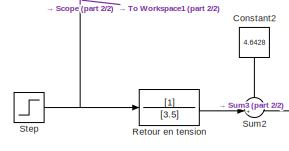
[diagram: root canvas - part 1/2, top left region]
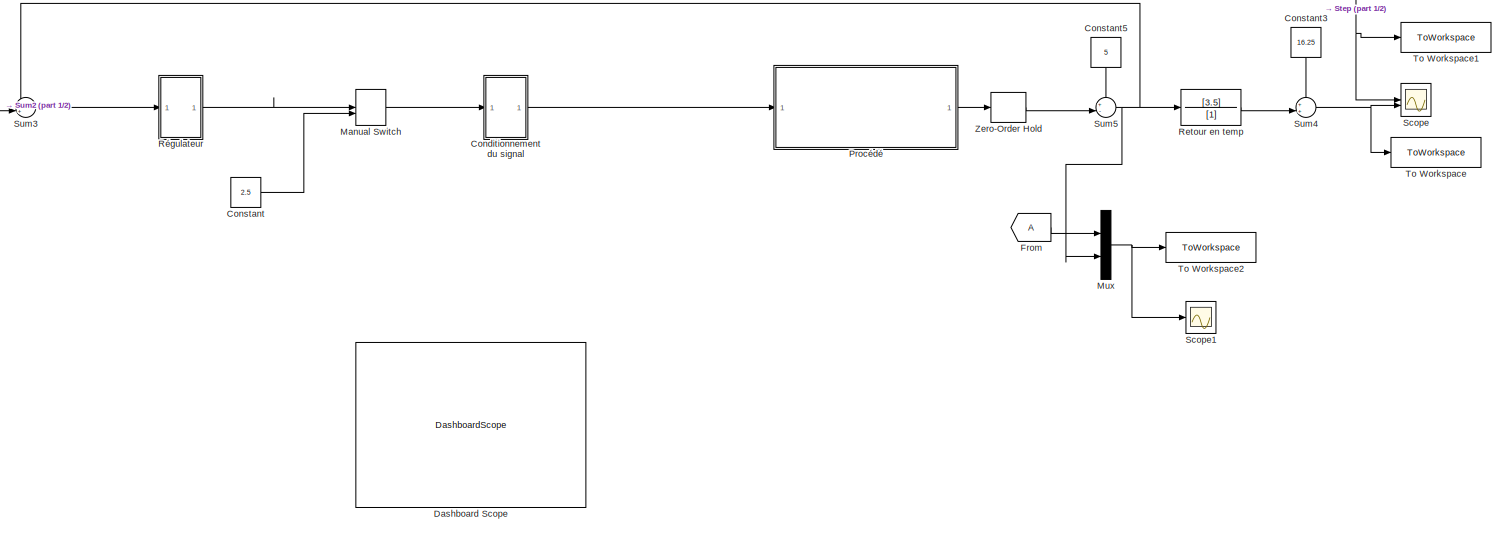
[diagram: root canvas - part 2/2, most of the canvas]
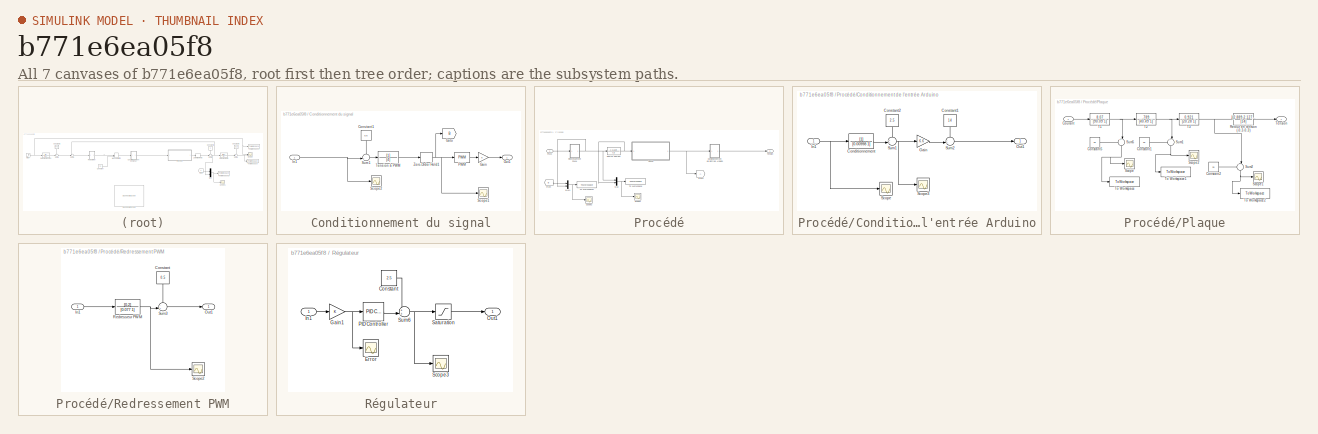
[diagram: thumbnail index - all 7 canvases of the model, root first then tree order]
MODEL slx_b771e6ea05f8
KIND model
CONFIG AbsTol = auto
CONFIG EnableMultiTasking = off
CONFIG FixedStep = auto
CONFIG MaxStep = auto
CONFIG MinStep = auto
CONFIG RelTol = 1e-3
CONFIG SampleTimeConstraint = Unconstrained
CONFIG SolverName = VariableStepAuto
CONFIG StartTime = 0.0
CONFIG StopTime = 1500
BLOCK [SubSystem] Conditionnement du signal
BLOCK [Constant] Conditionnement du signal/Constant1
  NameLocation = left
  Value = 0.5
BLOCK [Gain] Conditionnement du signal/Gain
  Gain = 5
BLOCK [Goto] Conditionnement du signal/Goto
  GotoTag = B
  TagVisibility = global
BLOCK [Inport] Conditionnement du signal/In1
BLOCK [Outport] Conditionnement du signal/Out1
BLOCK [Reference] Conditionnement du signal/PWM  REF=simulink/Discontinuities/PWM
  DisableCoverage = on
  SourceBlock = simulink/Discontinuities/PWM
  SourceType = PWM
BLOCK [Scope] Conditionnement du signal/Scope1
  Floating = off
  NumInputPorts = 1
  ScopeSpecificationString = Simulink.scopes.TimeScopeBlockCfg('CurrentConfiguration', extmgr.ConfigurationSet(extmgr.Configuration('Core','General UI',true),extmgr.Configuration('Core','Source UI',true),extmgr.Configuration('Sources','WiredSimulink',true,'DataLoggingVariableName','ScopeData1'),extmgr.Configuration('Visuals','Time Domain',true,'SerializedDisplays',{struct('MinYLimReal','-0.02995','MaxYLimReal','0.26953','YLab...<+1448ch>
BLOCK [Scope] Conditionnement du signal/Scope2
  Floating = off
  NumInputPorts = 1
  ScopeSpecificationString = Simulink.scopes.TimeScopeBlockCfg('CurrentConfiguration', extmgr.ConfigurationSet(extmgr.Configuration('Core','General UI',true),extmgr.Configuration('Core','Source UI',true),extmgr.Configuration('Sources','WiredSimulink',true,'DataLoggingVariableName','ScopeData1'),extmgr.Configuration('Visuals','Time Domain',true,'SerializedDisplays',{struct('MinYLimReal','2.13981','MaxYLimReal','2.68134','YLabe...<+1431ch>
BLOCK [Sum] Conditionnement du signal/Sum1
  InputSameDT = on
  Inputs = -+|
  OutDataTypeStr = Inherit: Same as first input
  SaturateOnIntegerOverflow = on
BLOCK [TransferFcn] Conditionnement du signal/Tension à PWM
  Denominator = [4]
BLOCK [ZeroOrderHold] Conditionnement du signal/Zero-Order Hold1
BLOCK [Constant] Constant
  Value = 2.5
BLOCK [Constant] Constant2
  NameLocation = left
  Value = 4.6428
BLOCK [Constant] Constant3
  NameLocation = left
  Value = 16.25
BLOCK [Constant] Constant5
  NameLocation = left
  Value = 5
BLOCK [DashboardScope] Dashboard Scope
BLOCK [From] From
  TagVisibility = global
BLOCK [ManualSwitch] Manual Switch
  CurrentSetting = 0
BLOCK [Mux] Mux
  DisplayOption = bar
  Inputs = 2
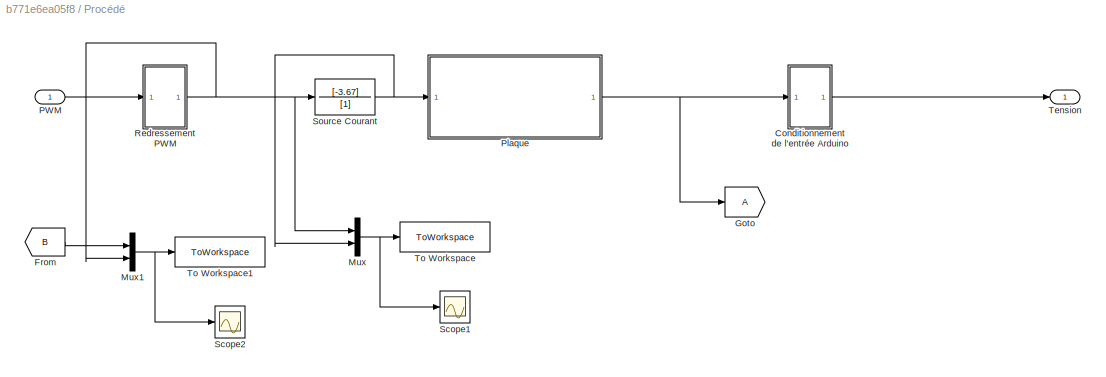
BLOCK [SubSystem] Procédé
BLOCK [SubSystem] Procédé/Conditionnement de l'entrée Arduino
BLOCK [TransferFcn] Procédé/Conditionnement de l'entrée Arduino/Conditionnement
  Denominator = [0.00998 1]
BLOCK [Constant] Procédé/Conditionnement de l'entrée Arduino/Constant1
  NameLocation = left
  Value = 14
BLOCK [Constant] Procédé/Conditionnement de l'entrée Arduino/Constant2
  NameLocation = left
  Value = 2.5
BLOCK [Gain] Procédé/Conditionnement de l'entrée Arduino/Gain
  Gain = 6.6
BLOCK [Inport] Procédé/Conditionnement de l'entrée Arduino/In1
BLOCK [Outport] Procédé/Conditionnement de l'entrée Arduino/Out1
BLOCK [Scope] Procédé/Conditionnement de l'entrée Arduino/Scope
  Floating = off
  NumInputPorts = 1
  ScopeSpecificationString = Simulink.scopes.TimeScopeBlockCfg('CurrentConfiguration', extmgr.ConfigurationSet(extmgr.Configuration('Core','General UI',true),extmgr.Configuration('Core','Source UI',true),extmgr.Configuration('Sources','WiredSimulink',true,'DataLoggingVariableName','ScopeData2'),extmgr.Configuration('Visuals','Time Domain',true,'SerializedDisplays',{struct('MinYLimReal','-0.34093','MaxYLimReal','0.03808','YLab...<+1807ch>
BLOCK [Scope] Procédé/Conditionnement de l'entrée Arduino/Scope3
  Floating = off
  NumInputPorts = 1
  ScopeSpecificationString = Simulink.scopes.TimeScopeBlockCfg('CurrentConfiguration', extmgr.ConfigurationSet(extmgr.Configuration('Core','General UI',true),extmgr.Configuration('Core','Source UI',true),extmgr.Configuration('Sources','WiredSimulink',true,'DataLoggingVariableName','ScopeData2'),extmgr.Configuration('Visuals','Time Domain',true,'SerializedDisplays',{struct('MinYLimReal','2.32466','MaxYLimReal','2.51968','YLabe...<+1435ch>
BLOCK [Sum] Procédé/Conditionnement de l'entrée Arduino/Sum1
  InputSameDT = on
  Inputs = ++|
  OutDataTypeStr = Inherit: Same as first input
  SaturateOnIntegerOverflow = on
BLOCK [Sum] Procédé/Conditionnement de l'entrée Arduino/Sum2
  InputSameDT = on
  Inputs = -+|
  OutDataTypeStr = Inherit: Same as first input
  SaturateOnIntegerOverflow = on
BLOCK [From] Procédé/From
  GotoTag = B
  TagVisibility = global
BLOCK [Goto] Procédé/Goto
  TagVisibility = global
BLOCK [Mux] Procédé/Mux
  DisplayOption = bar
  Inputs = 2
BLOCK [Mux] Procédé/Mux1
  DisplayOption = bar
  Inputs = 2
BLOCK [Inport] Procédé/PWM
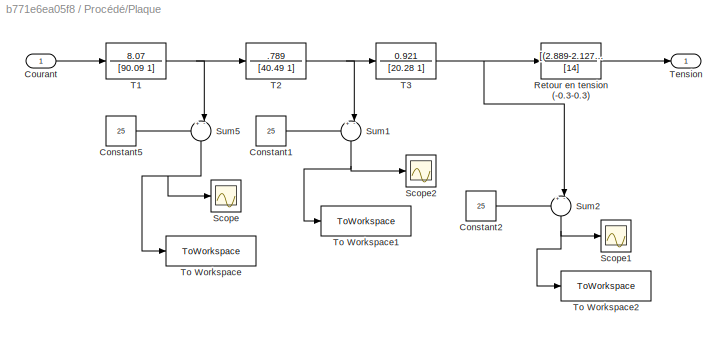
BLOCK [SubSystem] Procédé/Plaque
  ShowPortLabels = SignalName
BLOCK [Constant] Procédé/Plaque/Constant1
  Value = 25
BLOCK [Constant] Procédé/Plaque/Constant2
  Value = 25
BLOCK [Constant] Procédé/Plaque/Constant5
  Value = 25
BLOCK [Inport] Procédé/Plaque/Courant
BLOCK [TransferFcn] Procédé/Plaque/Retour en tension (-0.3-0.3)
  Denominator = [14]
  Numerator = [(2.889-2.127)]
BLOCK [Scope] Procédé/Plaque/Scope
  Floating = off
  NumInputPorts = 1
  ScopeSpecificationString = Simulink.scopes.TimeScopeBlockCfg('CurrentConfiguration', extmgr.ConfigurationSet(extmgr.Configuration('Core','General UI',true),extmgr.Configuration('Core','Source UI',true),extmgr.Configuration('Sources','WiredSimulink',true,'DataLoggingVariableName','ScopeData3'),extmgr.Configuration('Visuals','Time Domain',true,'SerializedDisplays',{struct('MinYLimReal','24.98594','MaxYLimReal','25.00156','YLa...<+1500ch>
BLOCK [Scope] Procédé/Plaque/Scope1
  Floating = off
  NumInputPorts = 1
  ScopeSpecificationString = Simulink.scopes.TimeScopeBlockCfg('CurrentConfiguration', extmgr.ConfigurationSet(extmgr.Configuration('Core','General UI',true),extmgr.Configuration('Core','Source UI',true),extmgr.Configuration('Sources','WiredSimulink',true,'DataLoggingVariableName','ScopeData2'),extmgr.Configuration('Visuals','Time Domain',true,'SerializedDisplays',{struct('MinYLimReal','24.6947','MaxYLimReal','27.7077','YLabe...<+1361ch>
BLOCK [Scope] Procédé/Plaque/Scope2
  Floating = off
  NumInputPorts = 1
  ScopeSpecificationString = Simulink.scopes.TimeScopeBlockCfg('CurrentConfiguration', extmgr.ConfigurationSet(extmgr.Configuration('Core','General UI',true),extmgr.Configuration('Core','Source UI',true),extmgr.Configuration('Sources','WiredSimulink',true,'DataLoggingVariableName','ScopeData1'),extmgr.Configuration('Visuals','Time Domain',true,'SerializedDisplays',{struct('MinYLimReal','24.99419','MaxYLimReal','25.00065','YLa...<+1500ch>
BLOCK [Sum] Procédé/Plaque/Sum1
  InputSameDT = on
  Inputs = +-|
  NameLocation = left
  OutDataTypeStr = Inherit: Same as first input
  SaturateOnIntegerOverflow = on
BLOCK [Sum] Procédé/Plaque/Sum2
  InputSameDT = on
  Inputs = +-|
  NameLocation = left
  OutDataTypeStr = Inherit: Same as first input
  SaturateOnIntegerOverflow = on
BLOCK [Sum] Procédé/Plaque/Sum5
  InputSameDT = on
  Inputs = +-|
  NameLocation = left
  OutDataTypeStr = Inherit: Same as first input
  SaturateOnIntegerOverflow = on
BLOCK [TransferFcn] Procédé/Plaque/T1
  Denominator = [90.09 1]
  Numerator = 8.07
BLOCK [TransferFcn] Procédé/Plaque/T2
  Denominator = [40.49 1]
  Numerator = .789
BLOCK [TransferFcn] Procédé/Plaque/T3
  Denominator = [20.28 1]
  Numerator = 0.921
BLOCK [Outport] Procédé/Plaque/Tension
BLOCK [ToWorkspace] Procédé/Plaque/To Workspace
  FixptAsFi = on
  MaxDataPoints = inf
  SampleTime = -1
  SaveFormat = Timeseries
  VariableName = simout2
BLOCK [ToWorkspace] Procédé/Plaque/To Workspace1
  FixptAsFi = on
  MaxDataPoints = inf
  SampleTime = -1
  SaveFormat = Timeseries
  VariableName = simout3
BLOCK [ToWorkspace] Procédé/Plaque/To Workspace2
  FixptAsFi = on
  MaxDataPoints = inf
  SampleTime = -1
  SaveFormat = Timeseries
  VariableName = simout4
BLOCK [SubSystem] Procédé/Redressement PWM
BLOCK [Constant] Procédé/Redressement PWM/Constant
  NameLocation = left
  Value = 0.5
BLOCK [Inport] Procédé/Redressement PWM/In1
BLOCK [Outport] Procédé/Redressement PWM/Out1
BLOCK [TransferFcn] Procédé/Redressement PWM/Redresseur PWM
  Denominator = [0.077 1]
  Numerator = [0.2]
BLOCK [Scope] Procédé/Redressement PWM/Scope2
  Floating = off
  NumInputPorts = 1
  ScopeSpecificationString = Simulink.scopes.TimeScopeBlockCfg('CurrentConfiguration', extmgr.ConfigurationSet(extmgr.Configuration('Core','General UI',true),extmgr.Configuration('Core','Source UI',true),extmgr.Configuration('Sources','WiredSimulink',true,'DataLoggingVariableName','ScopeData4'),extmgr.Configuration('Visuals','Time Domain',true,'SerializedDisplays',{struct('MinYLimReal','-3.10723','MaxYLimReal','2.5508','YLabe...<+1447ch>
BLOCK [Sum] Procédé/Redressement PWM/Sum3
  InputSameDT = on
  Inputs = -+|
  OutDataTypeStr = Inherit: Same as first input
  SaturateOnIntegerOverflow = on
BLOCK [Scope] Procédé/Scope1
  Floating = off
  NumInputPorts = 1
  ScopeSpecificationString = Simulink.scopes.TimeScopeBlockCfg('CurrentConfiguration', extmgr.ConfigurationSet(extmgr.Configuration('Core','General UI',true),extmgr.Configuration('Core','Source UI',true),extmgr.Configuration('Sources','WiredSimulink',true,'DataLoggingVariableName','ScopeData5'),extmgr.Configuration('Visuals','Time Domain',true,'SerializedDisplays',{struct('MinYLimReal','-0.79674','MaxYLimReal','2.12742','YLab...<+1417ch>
BLOCK [Scope] Procédé/Scope2
  Floating = off
  NumInputPorts = 1
  ScopeSpecificationString = Simulink.scopes.TimeScopeBlockCfg('CurrentConfiguration', extmgr.ConfigurationSet(extmgr.Configuration('Core','General UI',true),extmgr.Configuration('Core','Source UI',true),extmgr.Configuration('Sources','WiredSimulink',true,'DataLoggingVariableName','ScopeData6'),extmgr.Configuration('Visuals','Time Domain',true,'SerializedDisplays',{struct('MinYLimReal','-0.64179','MaxYLimReal','0.77608','YLab...<+1449ch>
BLOCK [TransferFcn] Procédé/Source Courant
  Denominator = [1]
  Numerator = [-3.67]
BLOCK [Outport] Procédé/Tension
BLOCK [ToWorkspace] Procédé/To Workspace
  FixptAsFi = on
  MaxDataPoints = inf
  SampleTime = 1
  VariableName = echelon_source_courant
BLOCK [ToWorkspace] Procédé/To Workspace1
  FixptAsFi = on
  MaxDataPoints = inf
  SampleTime = 1
  VariableName = echelon_redressement_PWM
BLOCK [TransferFcn] Retour en temp
  Denominator = [1]
  Numerator = [3.5]
BLOCK [TransferFcn] Retour en tension
  Denominator = [3.5]
BLOCK [SubSystem] Régulateur
BLOCK [Constant] Régulateur/Constant
  Value = 2.5
BLOCK [Scope] Régulateur/Error
  Floating = off
  NumInputPorts = 1
  ScopeSpecificationString = Simulink.scopes.TimeScopeBlockCfg('CurrentConfiguration', extmgr.ConfigurationSet(extmgr.Configuration('Core','General UI',true),extmgr.Configuration('Core','Source UI',true),extmgr.Configuration('Sources','WiredSimulink',true,'DataLoggingVariableName','ScopeData1'),extmgr.Configuration('Visuals','Time Domain',true,'SerializedDisplays',{struct('MinYLimReal','-0.57133','MaxYLimReal','0.57113','YLab...<+1418ch>
BLOCK [Gain] Régulateur/Gain1
BLOCK [Inport] Régulateur/In1
BLOCK [Outport] Régulateur/Out1
BLOCK [Reference] Régulateur/PID Controller  REF=slpidlib/PID Controller
  LibrarySourceBlock = simulink/Continuous/PID Controller
  SourceBlock = slpidlib/PID Controller
  SourceType = PID 1dof
BLOCK [Saturate] Régulateur/Saturation
  LowerLimit = 0.1
  UpperLimit = 4.9
BLOCK [Scope] Régulateur/Scope3
  Floating = off
  NumInputPorts = 1
  ScopeSpecificationString = Simulink.scopes.TimeScopeBlockCfg('CurrentConfiguration', extmgr.ConfigurationSet(extmgr.Configuration('Core','General UI',true),extmgr.Configuration('Core','Source UI',true),extmgr.Configuration('Sources','WiredSimulink',true,'DataLoggingVariableName','ScopeData1'),extmgr.Configuration('Visuals','Time Domain',true,'SerializedDisplays',{struct('MinYLimReal','2.13981','MaxYLimReal','2.68134','YLabe...<+1425ch>
BLOCK [Sum] Régulateur/Sum6
  InputSameDT = on
  Inputs = ++|
  OutDataTypeStr = Inherit: Same as first input
  SaturateOnIntegerOverflow = on
BLOCK [Scope] Scope
  Floating = off
  NumInputPorts = 2
  ScopeSpecificationString = Simulink.scopes.TimeScopeBlockCfg('CurrentConfiguration', extmgr.ConfigurationSet(extmgr.Configuration('Core','General UI',true),extmgr.Configuration('Core','Source UI',true),extmgr.Configuration('Sources','WiredSimulink',true,'DataLogging',true),extmgr.Configuration('Visuals','Time Domain',true,'SerializedDisplays',{struct('MinYLimReal','24.99372','MaxYLimReal','25.0007','YLabelReal','','MinYLimM...<+1858ch>
BLOCK [Scope] Scope1
  Floating = off
  NumInputPorts = 1
  ScopeSpecificationString = Simulink.scopes.TimeScopeBlockCfg('CurrentConfiguration', extmgr.ConfigurationSet(extmgr.Configuration('Core','General UI',true),extmgr.Configuration('Core','Source UI',true),extmgr.Configuration('Sources','WiredSimulink',true,'DataLoggingVariableName','ScopeData4'),extmgr.Configuration('Visuals','Time Domain',true,'SerializedDisplays',{struct('MinYLimReal','-0.56791','MaxYLimReal','3.80138','YLab...<+1397ch>
BLOCK [Step] Step
  After = 28
  Before = 25
  SampleTime = 0
  Time = 600
BLOCK [Sum] Sum2
  InputSameDT = on
  Inputs = -+|
  OutDataTypeStr = Inherit: Same as first input
  SaturateOnIntegerOverflow = on
BLOCK [Sum] Sum3
  InputSameDT = on
  Inputs = -+|
  OutDataTypeStr = Inherit: Same as first input
  SaturateOnIntegerOverflow = on
BLOCK [Sum] Sum4
  InputSameDT = on
  Inputs = ++|
  OutDataTypeStr = Inherit: Same as first input
  SaturateOnIntegerOverflow = on
BLOCK [Sum] Sum5
  InputSameDT = on
  Inputs = +-|
  OutDataTypeStr = Inherit: Same as first input
  SaturateOnIntegerOverflow = on
BLOCK [ToWorkspace] To Workspace
  MaxDataPoints = inf
  SampleTime = -1
  SaveFormat = Structure With Time
  VariableName = simout
BLOCK [ToWorkspace] To Workspace1
  FixptAsFi = on
  MaxDataPoints = inf
  SampleTime = -1
  VariableName = simout1
BLOCK [ToWorkspace] To Workspace2
  FixptAsFi = on
  MaxDataPoints = inf
  SampleTime = 1
  VariableName = echelon_circuit_entree_arduino
BLOCK [ZeroOrderHold] Zero-Order Hold
LINE Conditionnement du signal/Constant1:1 -> Conditionnement du signal/Sum1:1
LINE Conditionnement du signal/Gain:1 -> Conditionnement du signal/Out1:1
NET Conditionnement du signal/In1:1 -> Conditionnement du signal/Scope2:1, Conditionnement du signal/Sum1:2
LINE Conditionnement du signal/PWM:1 -> Conditionnement du signal/Gain:1
LINE Conditionnement du signal/Sum1:1 -> Conditionnement du signal/Tension à PWM:1
LINE Conditionnement du signal/Tension à PWM:1 -> Conditionnement du signal/Zero-Order Hold1:1
NET Conditionnement du signal/Zero-Order Hold1:1 -> Conditionnement du signal/Goto:1, Conditionnement du signal/PWM:1, Conditionnement du signal/Scope1:1
LINE Conditionnement du signal:1 -> Procédé:1
LINE Constant2:1 -> Sum2:1
LINE Constant3:1 -> Sum4:1
LINE Constant5:1 -> Sum5:1
LINE Constant:1 -> Manual Switch:2
LINE From:1 -> Mux:1
LINE Manual Switch:1 -> Conditionnement du signal:1
NET Mux:1 -> Scope1:1, To Workspace2:1
LINE Procédé/Conditionnement de l'entrée Arduino/Conditionnement:1 -> Procédé/Conditionnement de l'entrée Arduino/Sum1:2
LINE Procédé/Conditionnement de l'entrée Arduino/Constant1:1 -> Procédé/Conditionnement de l'entrée Arduino/Sum2:1
LINE Procédé/Conditionnement de l'entrée Arduino/Constant2:1 -> Procédé/Conditionnement de l'entrée Arduino/Sum1:1
LINE Procédé/Conditionnement de l'entrée Arduino/Gain:1 -> Procédé/Conditionnement de l'entrée Arduino/Sum2:2
NET Procédé/Conditionnement de l'entrée Arduino/In1:1 -> Procédé/Conditionnement de l'entrée Arduino/Conditionnement:1, Procédé/Conditionnement de l'entrée Arduino/Scope:1
NET Procédé/Conditionnement de l'entrée Arduino/Sum1:1 -> Procédé/Conditionnement de l'entrée Arduino/Gain:1, Procédé/Conditionnement de l'entrée Arduino/Scope3:1
LINE Procédé/Conditionnement de l'entrée Arduino/Sum2:1 -> Procédé/Conditionnement de l'entrée Arduino/Out1:1
LINE Procédé/Conditionnement de l'entrée Arduino:1 -> Procédé/Tension:1
LINE Procédé/From:1 -> Procédé/Mux1:1
NET Procédé/Mux1:1 -> Procédé/Scope2:1, Procédé/To Workspace1:1
NET Procédé/Mux:1 -> Procédé/Scope1:1, Procédé/To Workspace:1
LINE Procédé/PWM:1 -> Procédé/Redressement PWM:1
LINE Procédé/Plaque/Constant1:1 -> Procédé/Plaque/Sum1:1
LINE Procédé/Plaque/Constant2:1 -> Procédé/Plaque/Sum2:1
LINE Procédé/Plaque/Constant5:1 -> Procédé/Plaque/Sum5:1
LINE Procédé/Plaque/Courant:1 -> Procédé/Plaque/T1:1
LINE Procédé/Plaque/Retour en tension (-0.3-0.3):1 -> Procédé/Plaque/Tension:1
NET Procédé/Plaque/Sum1:1 -> Procédé/Plaque/Scope2:1, Procédé/Plaque/To Workspace1:1
NET Procédé/Plaque/Sum2:1 -> Procédé/Plaque/Scope1:1, Procédé/Plaque/To Workspace2:1
NET Procédé/Plaque/Sum5:1 -> Procédé/Plaque/Scope:1, Procédé/Plaque/To Workspace:1
NET Procédé/Plaque/T1:1 -> Procédé/Plaque/Sum5:2, Procédé/Plaque/T2:1
NET Procédé/Plaque/T2:1 -> Procédé/Plaque/Sum1:2, Procédé/Plaque/T3:1
NET Procédé/Plaque/T3:1 -> Procédé/Plaque/Retour en tension (-0.3-0.3):1, Procédé/Plaque/Sum2:2
NET Procédé/Plaque:1 -> Procédé/Conditionnement de l'entrée Arduino:1, Procédé/Goto:1
LINE Procédé/Redressement PWM/Constant:1 -> Procédé/Redressement PWM/Sum3:1
LINE Procédé/Redressement PWM/In1:1 -> Procédé/Redressement PWM/Redresseur PWM:1
NET Procédé/Redressement PWM/Redresseur PWM:1 -> Procédé/Redressement PWM/Scope2:1, Procédé/Redressement PWM/Sum3:2
LINE Procédé/Redressement PWM/Sum3:1 -> Procédé/Redressement PWM/Out1:1
NET Procédé/Redressement PWM:1 -> Procédé/Mux1:2, Procédé/Mux:1, Procédé/Source Courant:1
NET Procédé/Source Courant:1 -> Procédé/Mux:2, Procédé/Plaque:1
LINE Procédé:1 -> Zero-Order Hold:1
LINE Retour en temp:1 -> Sum4:2
LINE Retour en tension:1 -> Sum2:2
LINE Régulateur/Constant:1 -> Régulateur/Sum6:1
NET Régulateur/Gain1:1 -> Régulateur/Error:1, Régulateur/PID Controller:1
LINE Régulateur/In1:1 -> Régulateur/Gain1:1
LINE Régulateur/PID Controller:1 -> Régulateur/Sum6:2
LINE Régulateur/Saturation:1 -> Régulateur/Out1:1
NET Régulateur/Sum6:1 -> Régulateur/Saturation:1, Régulateur/Scope3:1
LINE Régulateur:1 -> Manual Switch:1
NET Step:1 -> Retour en tension:1, Scope:1, To Workspace1:1
LINE Sum2:1 -> Sum3:2
LINE Sum3:1 -> Régulateur:1
NET Sum4:1 -> Scope:2, To Workspace:1
NET Sum5:1 -> Mux:2, Retour en temp:1, Sum3:1
LINE Zero-Order Hold:1 -> Sum5:2
note: NET lines group one-source signal fan-out (src -> all destinations, sorted); 1:1 wires keep LINE
